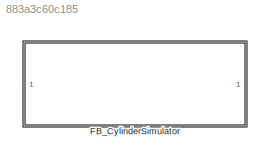
MODEL slx_883a3c60c185
KIND model
CONFIG AbsTol = auto
CONFIG EnableMultiTasking = off
CONFIG FixedStep = 0.001
CONFIG MaxStep = auto
CONFIG MinStep = auto
CONFIG RelTol = 1e-3
CONFIG SampleTimeConstraint = Unconstrained
CONFIG SolverName = FixedStepDiscrete
CONFIG StartTime = 0.0
CONFIG StopTime = 40
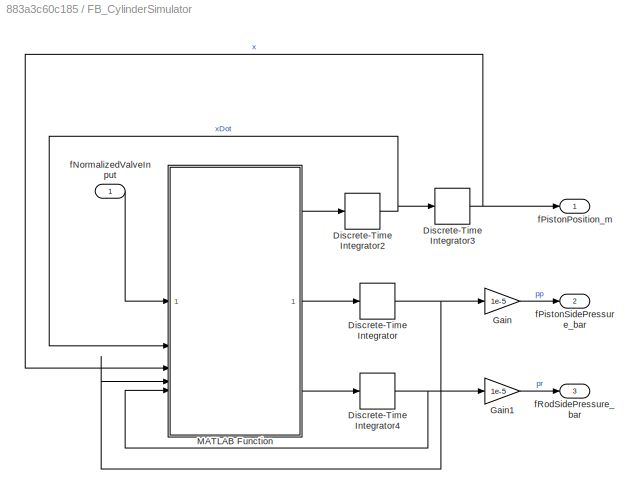
BLOCK [SubSystem] FB_CylinderSimulator
  TreatAsAtomicUnit = on
BLOCK [DiscreteIntegrator] FB_CylinderSimulator/Discrete-Time Integrator
  ICPrevOutput = DiscIntNeverNeededParam
  ICPrevScaledInput = DiscIntNeverNeededParam
  InitialCondition = 68.74e5
  InitialConditionSetting = Auto
  LimitOutput = on
  LowerSaturationLimit = 1.1e5
  SampleTime = -1
  UpperSaturationLimit = 180e5
BLOCK [DiscreteIntegrator] FB_CylinderSimulator/Discrete-Time Integrator2
  ICPrevOutput = DiscIntNeverNeededParam
  ICPrevScaledInput = DiscIntNeverNeededParam
  InitialConditionSetting = Auto
  LowerSaturationLimit = -0.12
  SampleTime = -1
  UpperSaturationLimit = 0.12
BLOCK [DiscreteIntegrator] FB_CylinderSimulator/Discrete-Time Integrator3
  ICPrevOutput = DiscIntNeverNeededParam
  ICPrevScaledInput = DiscIntNeverNeededParam
  InitialConditionSetting = Auto
  LimitOutput = on
  LowerSaturationLimit = 0
  SampleTime = -1
  UpperSaturationLimit = 0.5
BLOCK [DiscreteIntegrator] FB_CylinderSimulator/Discrete-Time Integrator4
  ICPrevOutput = DiscIntNeverNeededParam
  ICPrevScaledInput = DiscIntNeverNeededParam
  InitialCondition = 5.144e5
  InitialConditionSetting = Auto
  LimitOutput = on
  LowerSaturationLimit = 1.1e5
  SampleTime = -1
  UpperSaturationLimit = 180e5
BLOCK [Gain] FB_CylinderSimulator/Gain
  Gain = 1e-5
BLOCK [Gain] FB_CylinderSimulator/Gain1
  Gain = 1e-5
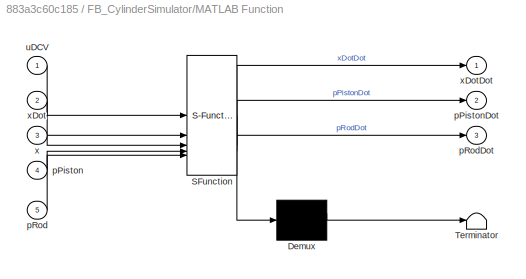
BLOCK [SubSystem] FB_CylinderSimulator/MATLAB Function
  ErrorFcn = Stateflow.Translate.translate
  PermitHierarchicalResolution = ExplicitOnly
  SFBlockType = MATLAB Function
  TreatAsAtomicUnit = on
BLOCK [Demux] FB_CylinderSimulator/MATLAB Function/ Demux 
  Outputs = 1
BLOCK [S-Function] FB_CylinderSimulator/MATLAB Function/ SFunction 
  EnableBusSupport = off
  FunctionName = sf_sfun
  PortCounts = [5 4]
  SFcnIsStateOwnerBlock = off
  SFunctionDeploymentMode = off
  Tag = Stateflow S-Function 9
BLOCK [Terminator] FB_CylinderSimulator/MATLAB Function/ Terminator 
BLOCK [Inport] FB_CylinderSimulator/MATLAB Function/pPiston
  Port = 4
BLOCK [Outport] FB_CylinderSimulator/MATLAB Function/pPistonDot
  Port = 2
BLOCK [Inport] FB_CylinderSimulator/MATLAB Function/pRod
  Port = 5
BLOCK [Outport] FB_CylinderSimulator/MATLAB Function/pRodDot
  Port = 3
BLOCK [Inport] FB_CylinderSimulator/MATLAB Function/uDCV
BLOCK [Inport] FB_CylinderSimulator/MATLAB Function/x
  Port = 3
BLOCK [Inport] FB_CylinderSimulator/MATLAB Function/xDot
  Port = 2
BLOCK [Outport] FB_CylinderSimulator/MATLAB Function/xDotDot
BLOCK [Inport] FB_CylinderSimulator/fNormalizedValveInput
BLOCK [Outport] FB_CylinderSimulator/fPistonPosition_m
BLOCK [Outport] FB_CylinderSimulator/fPistonSidePressure_bar
  Port = 2
BLOCK [Outport] FB_CylinderSimulator/fRodSidePressure_bar
  Port = 3
NET FB_CylinderSimulator/Discrete-Time Integrator2:1 -> FB_CylinderSimulator/Discrete-Time Integrator3:1, FB_CylinderSimulator/MATLAB Function:2
NET FB_CylinderSimulator/Discrete-Time Integrator3:1 -> FB_CylinderSimulator/MATLAB Function:3, FB_CylinderSimulator/fPistonPosition_m:1
NET FB_CylinderSimulator/Discrete-Time Integrator4:1 -> FB_CylinderSimulator/Gain1:1, FB_CylinderSimulator/MATLAB Function:5
NET FB_CylinderSimulator/Discrete-Time Integrator:1 -> FB_CylinderSimulator/Gain:1, FB_CylinderSimulator/MATLAB Function:4
LINE FB_CylinderSimulator/Gain1:1 -> FB_CylinderSimulator/fRodSidePressure_bar:1
LINE FB_CylinderSimulator/Gain:1 -> FB_CylinderSimulator/fPistonSidePressure_bar:1
LINE FB_CylinderSimulator/MATLAB Function:1 -> FB_CylinderSimulator/Discrete-Time Integrator2:1
LINE FB_CylinderSimulator/MATLAB Function:2 -> FB_CylinderSimulator/Discrete-Time Integrator:1
LINE FB_CylinderSimulator/MATLAB Function:3 -> FB_CylinderSimulator/Discrete-Time Integrator4:1
LINE FB_CylinderSimulator/fNormalizedValveInput:1 -> FB_CylinderSimulator/MATLAB Function:1
note: NET lines group one-source signal fan-out (src -> all destinations, sorted); 1:1 wires keep LINE
CHART FB_CylinderSimulator/MATLAB Function states=1 transitions=1
  STATE_LABEL 'eML_blk_kernel()'
  STATE_LABEL 'SCRIPT:\nfunction [xDotDot, pPistonDot, pRodDot] = fcn(uDCV, xDot, x, pPiston, pRod)\n%% Parameters\nmEffective = 1.5e+04;  % [kg]\nFexternal = 2.15e+04; % [N]\nkFric = 10000; % [N/(ms)]\nApiston = 0.0033; % [m^2]\nAannulus = 0.0023; % [m^2]\nbeta = 1.0e9; % [Pa]\npSupply = 180e5; % [Pa]\npReturn = 1.1e5; % [Pa]\nMaxStroke = 0.5; % [m]\nVCyl_A = 1.0e-03; \nVCyl_B = 1.25e-03; \np_nom_DCV = 7e5;  \nQ1_ref_DCV = 19...<+1354ch>'
CHART  states=0 transitions=0
